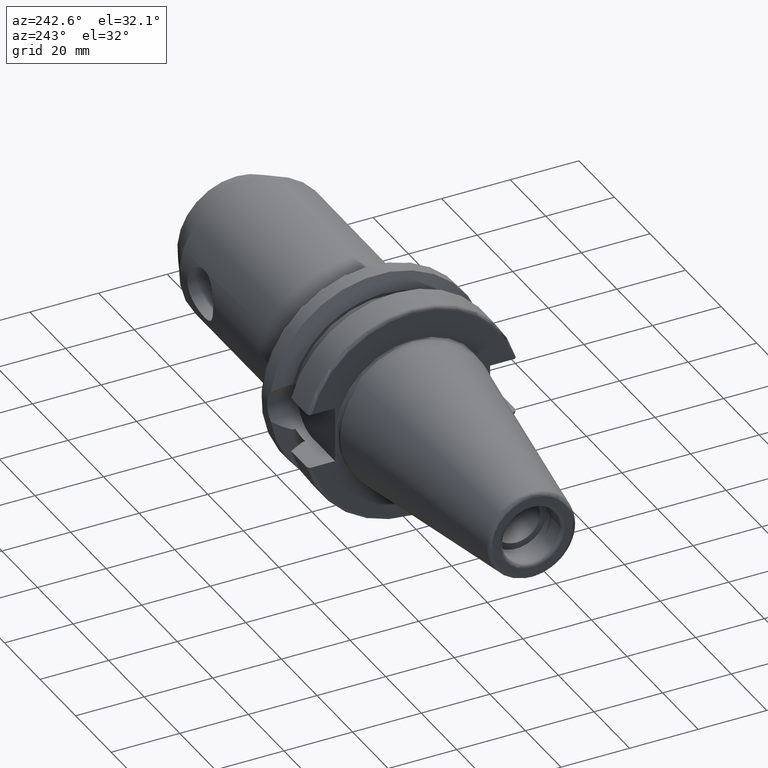
[diagram: clean part render]
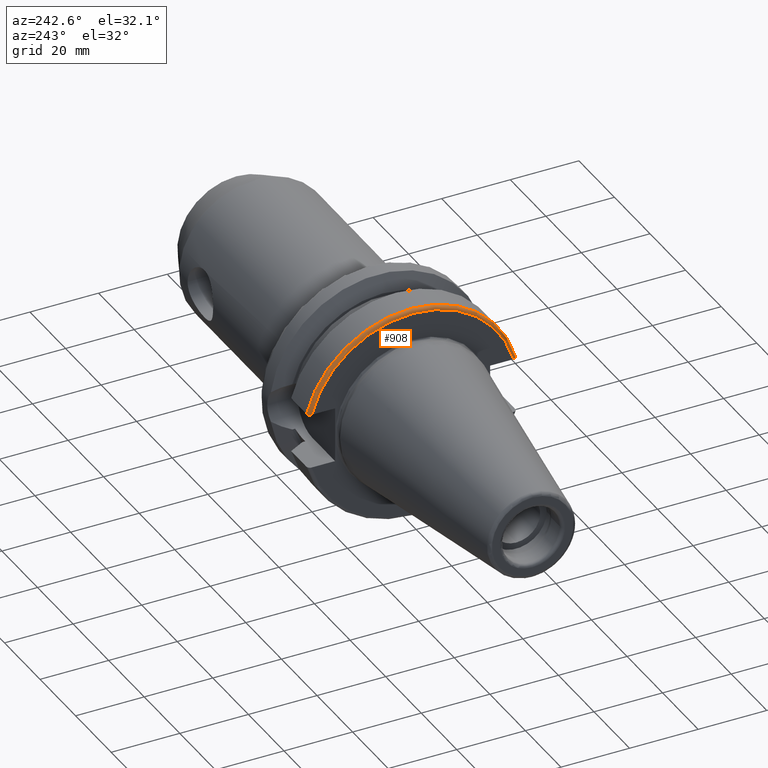
[diagram: same view with one face highlighted and labeled with its STEP entity id]
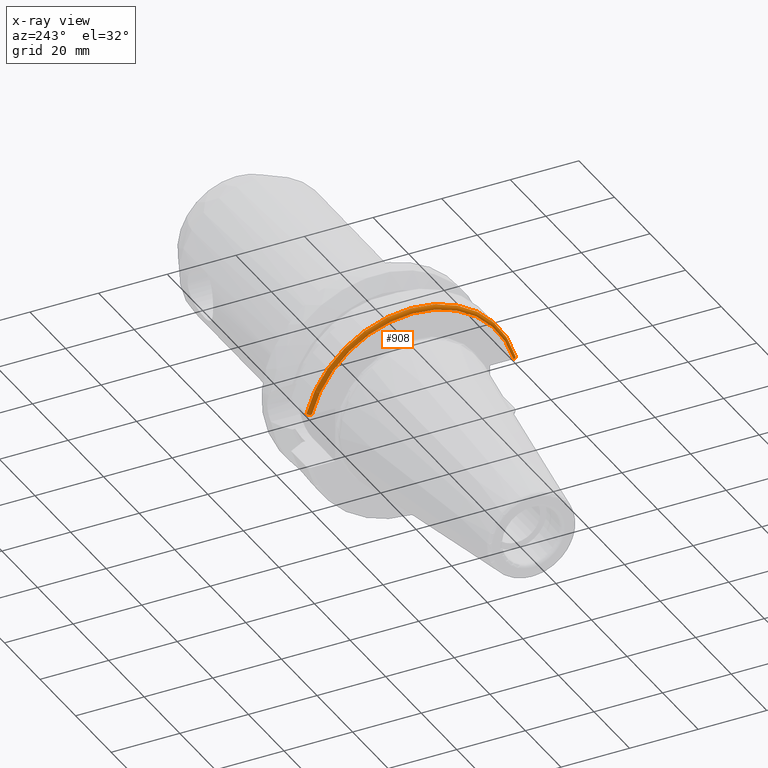
[diagram: x-ray of the same camera — body ghosted, the highlighted face saturated]
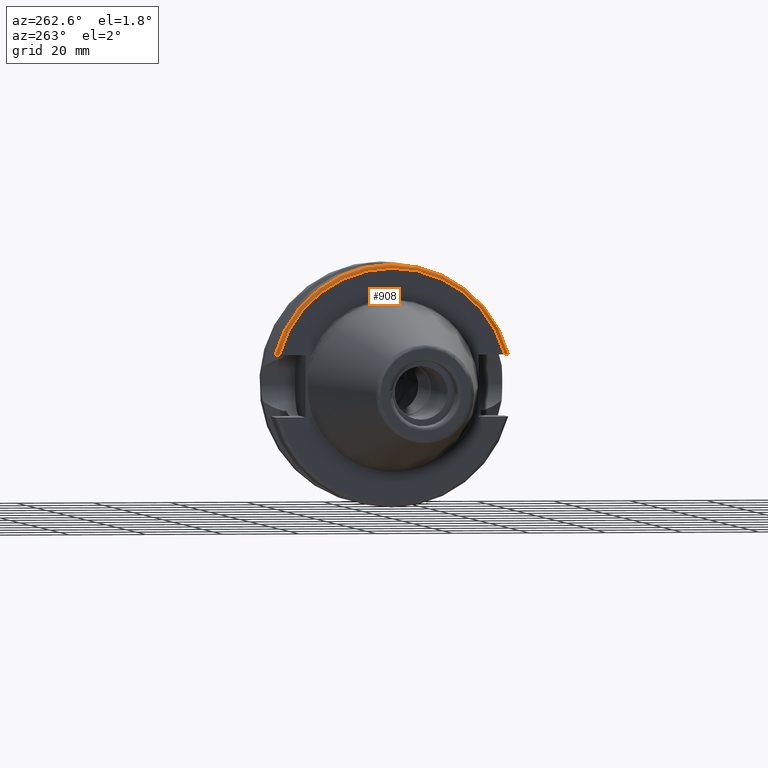
[diagram: same view with one face highlighted and labeled with its STEP entity id]
A machine part, auxiliary view. The second image highlights one B-rep face of the part: STEP entity #908.
The next image is the same camera in x-ray: the body ghosted, the highlighted face saturated — about 0% of this face is hidden behind the body in this view.
A second angle (auxiliary view) of the same face is appended — the face is thin or edge-on in the first view.
In plain terms, the highlighted toroidal blend (fillet) surface has major radius 30.5 mm and minor (blend) radius 1 mm.
Its self-contained STEP definition (entity closure, byte-faithful):
#39=B_SPLINE_CURVE_WITH_KNOTS('',3,(#1577,#1578,#1579,#1580,#1581,#1582,
#1583,#1584,#1585,#1586),.UNSPECIFIED.,.F.,.F.,(4,2,2,2,4),(-0.150751871388631,
-0.111946181815504,-0.0738743445372396,-0.0366169489027566,0.),
 .UNSPECIFIED.);
#47=B_SPLINE_CURVE_WITH_KNOTS('',3,(#1718,#1719,#1720,#1721,#1722,#1723,
#1724,#1725,#1726,#1727),.UNSPECIFIED.,.F.,.F.,(4,2,2,2,4),(0.,0.0366169489027566,
0.0738743445372396,0.111946181815504,0.150751871388631),.UNSPECIFIED.);
#225=FACE_OUTER_BOUND('',#287,.T.);
#287=EDGE_LOOP('',(#804,#805,#806,#807));
#353=CIRCLE('',#1036,30.5);
#354=CIRCLE('',#1038,31.5);
#408=VERTEX_POINT('',#1574);
#409=VERTEX_POINT('',#1576);
#436=VERTEX_POINT('',#1715);
#437=VERTEX_POINT('',#1717);
#510=EDGE_CURVE('',#409,#408,#39,.T.);
#551=EDGE_CURVE('',#437,#436,#47,.T.);
#572=EDGE_CURVE('',#436,#409,#353,.T.);
#573=EDGE_CURVE('',#437,#408,#354,.T.);
#804=ORIENTED_EDGE('',*,*,#510,.T.);
#805=ORIENTED_EDGE('',*,*,#573,.F.);
#806=ORIENTED_EDGE('',*,*,#551,.T.);
#807=ORIENTED_EDGE('',*,*,#572,.T.);
#864=TOROIDAL_SURFACE('',#1037,30.5,1.00000000000001);
#908=ADVANCED_FACE('',(#225),#864,.T.);
#1036=AXIS2_PLACEMENT_3D('',#1770,#1292,#1293);
#1037=AXIS2_PLACEMENT_3D('',#1771,#1294,#1295);
#1038=AXIS2_PLACEMENT_3D('',#1772,#1296,#1297);
#1292=DIRECTION('center_axis',(1.,0.,0.));
#1293=DIRECTION('ref_axis',(0.,0.,-1.));
#1294=DIRECTION('center_axis',(1.,0.,0.));
#1295=DIRECTION('ref_axis',(0.,-1.22464679914735E-16,1.));
#1296=DIRECTION('center_axis',(1.,0.,0.));
#1297=DIRECTION('ref_axis',(0.,0.,-1.));
#1574=CARTESIAN_POINT('',(2.99999999999999,-30.4540227227866,8.05));
#1576=CARTESIAN_POINT('',(1.99999999999999,-29.4184890842477,8.05));
#1577=CARTESIAN_POINT('Ctrl Pts',(1.99999999999999,-29.4184890842477,8.05));
#1578=CARTESIAN_POINT('Ctrl Pts',(1.99999999999999,-29.5478413828248,8.05));
#1579=CARTESIAN_POINT('Ctrl Pts',(2.02950258743517,-29.7002346307938,8.05));
#1580=CARTESIAN_POINT('Ctrl Pts',(2.12587454939785,-29.9376810968085,8.05));
#1581=CARTESIAN_POINT('Ctrl Pts',(2.2089547883793,-30.0653098968133,8.05));
#1582=CARTESIAN_POINT('Ctrl Pts',(2.38465986426588,-30.2446912007727,8.05));
#1583=CARTESIAN_POINT('Ctrl Pts',(2.50758665841081,-30.3289456947341,8.05));
#1584=CARTESIAN_POINT('Ctrl Pts',(2.73442803339431,-30.4247631098996,8.05));
#1585=CARTESIAN_POINT('Ctrl Pts',(2.87794350365748,-30.4540227227866,8.05));
#1586=CARTESIAN_POINT('Ctrl Pts',(3.,-30.4540227227866,8.05));
#1715=CARTESIAN_POINT('',(1.99999999999999,29.4184890842477,8.05));
#1717=CARTESIAN_POINT('',(2.99999999999999,30.4540227227866,8.05));
#1718=CARTESIAN_POINT('Ctrl Pts',(3.,30.4540227227866,8.05));
#1719=CARTESIAN_POINT('Ctrl Pts',(2.87794350365748,30.4540227227866,8.05));
#1720=CARTESIAN_POINT('Ctrl Pts',(2.73442803339431,30.4247631098996,8.05));
#1721=CARTESIAN_POINT('Ctrl Pts',(2.50758665841081,30.3289456947341,8.05));
#1722=CARTESIAN_POINT('Ctrl Pts',(2.38465986426588,30.2446912007727,8.05));
#1723=CARTESIAN_POINT('Ctrl Pts',(2.2089547883793,30.0653098968133,8.05));
#1724=CARTESIAN_POINT('Ctrl Pts',(2.12587454939785,29.9376810968085,8.05));
#1725=CARTESIAN_POINT('Ctrl Pts',(2.02950258743517,29.7002346307938,8.05));
#1726=CARTESIAN_POINT('Ctrl Pts',(1.99999999999999,29.5478413828248,8.05));
#1727=CARTESIAN_POINT('Ctrl Pts',(1.99999999999999,29.4184890842477,8.05));
#1770=CARTESIAN_POINT('Origin',(1.99999999999999,0.,0.));
#1771=CARTESIAN_POINT('Origin',(3.,0.,0.));
#1772=CARTESIAN_POINT('Origin',(2.99999999999999,0.,0.));